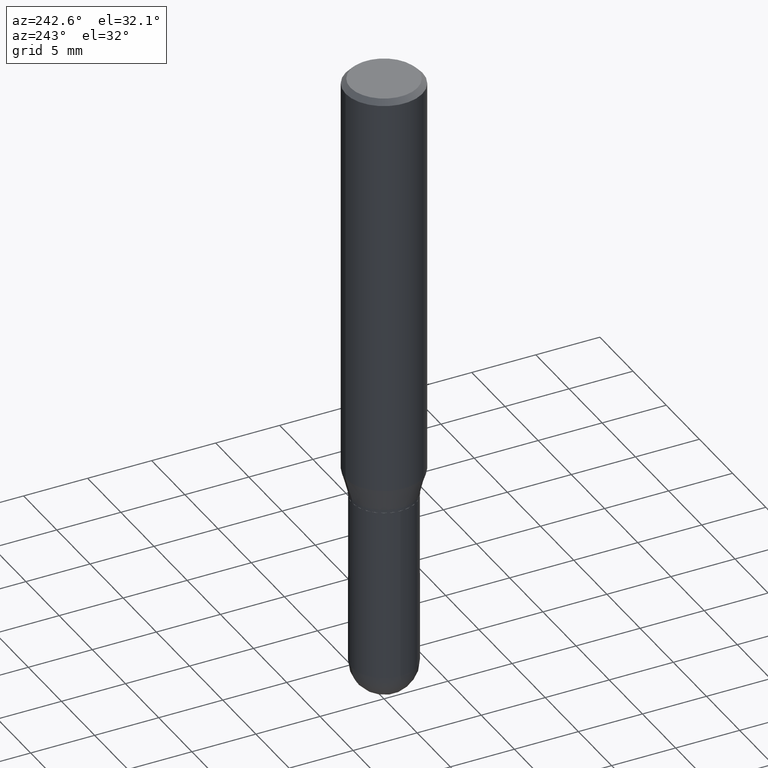
[diagram: clean part render]
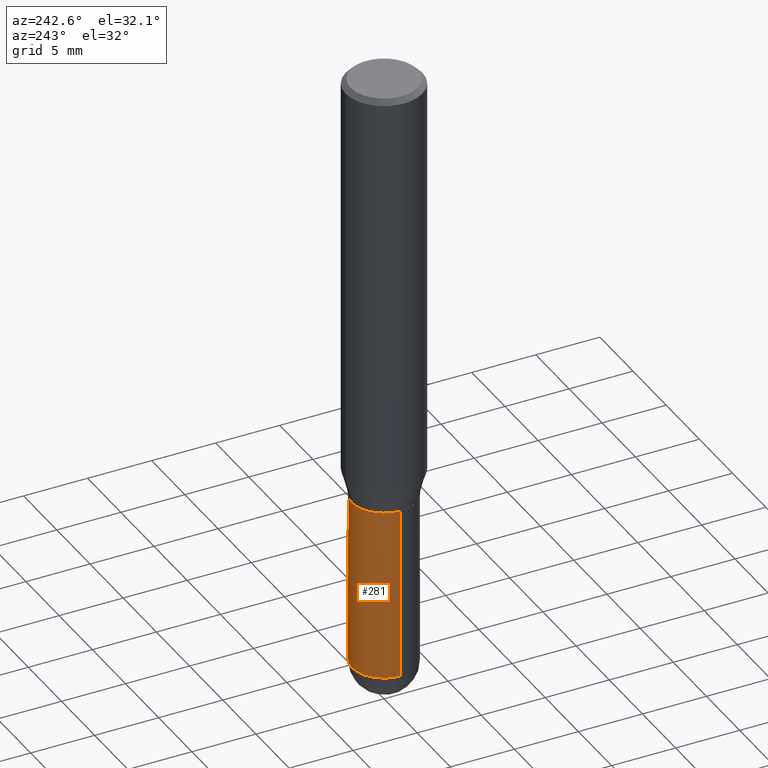
[diagram: same view with one face highlighted and labeled with its STEP entity id]
A machine part, auxiliary view. The second image highlights one B-rep face of the part: STEP entity #281.
In plain terms, the highlighted cylindrical surface (edge-blend (fillet) strip) has radius 2.5006 mm, axis along (-0, 0, 1).
Its self-contained STEP definition (entity closure, byte-faithful):
#9 = CARTESIAN_POINT ( 'NONE',  ( 0.09844999999999999585, -6.874726756182129545E-16, 4.800596035771099214E-30 ) ) ;
#12 = EDGE_CURVE ( 'NONE', #304, #364, #294, .T. ) ;
#18 = DIRECTION ( 'NONE',  ( -2.445468806185136597E-29, 3.491481338843145583E-15, 1.000000000000000000 ) ) ;
#19 = ORIENTED_EDGE ( 'NONE', *, *, #442, .T. ) ;
#20 = VERTEX_POINT ( 'NONE', #300 ) ;
#43 = DIRECTION ( 'NONE',  ( -2.445468806185136597E-29, 3.491481338843145583E-15, 1.000000000000000000 ) ) ;
#47 = EDGE_CURVE ( 'NONE', #364, #320, #336, .T. ) ;
#59 = CIRCLE ( 'NONE', #243, 0.09844999999999999585 ) ;
#70 = AXIS2_PLACEMENT_3D ( 'NONE', #303, #18, #339 ) ;
#96 = ORIENTED_EDGE ( 'NONE', *, *, #105, .F. ) ;
#98 = DIRECTION ( 'NONE',  ( -2.445468806185136877E-29, 3.491481338843145188E-15, 1.000000000000000000 ) ) ;
#105 = EDGE_CURVE ( 'NONE', #20, #242, #59, .T. ) ;
#106 = DIRECTION ( 'NONE',  ( -2.445468806185136597E-29, 3.491481338843145583E-15, 1.000000000000000000 ) ) ;
#110 = AXIS2_PLACEMENT_3D ( 'NONE', #459, #106, #335 ) ;
#133 = CARTESIAN_POINT ( 'NONE',  ( 0.000000000000000000, 0.000000000000000000, 0.000000000000000000 ) ) ;
#162 = CARTESIAN_POINT ( 'NONE',  ( 3.273504543959423913E-29, -4.673696920175434737E-15, -1.338600000000000012 ) ) ;
#164 = VECTOR ( 'NONE', #98, 39.37007874015748143 ) ;
#165 = EDGE_LOOP ( 'NONE', ( #412, #19, #96, #221, #256 ) ) ;
#167 = CYLINDRICAL_SURFACE ( 'NONE', #322, 0.09844999999999999585 ) ;
#176 = DIRECTION ( 'NONE',  ( -2.445468806185136877E-29, 3.491481338843145188E-15, 1.000000000000000000 ) ) ;
#210 = CARTESIAN_POINT ( 'NONE',  ( 0.09844999999999999585, -6.288943474557743431E-15, -1.870050000000000212 ) ) ;
#211 = CARTESIAN_POINT ( 'NONE',  ( -0.09844999999999999585, 6.995293233558186035E-16, -4.842691596355954042E-30 ) ) ;
#221 = ORIENTED_EDGE ( 'NONE', *, *, #365, .F. ) ;
#236 = DIRECTION ( 'NONE',  ( -2.445468806185136597E-29, 3.491481338843145583E-15, 1.000000000000000000 ) ) ;
#242 = VERTEX_POINT ( 'NONE', #443 ) ;
#243 = AXIS2_PLACEMENT_3D ( 'NONE', #162, #236, #278 ) ;
#254 = CARTESIAN_POINT ( 'NONE',  ( -0.09844999999999999585, -4.901941475583711971E-15, -1.870050000000000212 ) ) ;
#256 = ORIENTED_EDGE ( 'NONE', *, *, #12, .T. ) ;
#257 = LINE ( 'NONE', #211, #164 ) ;
#278 = DIRECTION ( 'NONE',  ( 1.000000000000000000, -6.982962677686265922E-15, 0.000000000000000000 ) ) ;
#281 = ADVANCED_FACE ( 'NONE', ( #289 ), #167, .T. ) ;
#289 = FACE_OUTER_BOUND ( 'NONE', #165, .T. ) ;
#294 = CIRCLE ( 'NONE', #70, 0.09844999999999999585 ) ;
#300 = CARTESIAN_POINT ( 'NONE',  ( 0.09844999999999999585, -5.361169595793647297E-15, -1.338600000000000012 ) ) ;
#303 = CARTESIAN_POINT ( 'NONE',  ( 4.573148941006514739E-29, -6.529244677703625427E-15, -1.870050000000000212 ) ) ;
#304 = VERTEX_POINT ( 'NONE', #210 ) ;
#320 = VERTEX_POINT ( 'NONE', #254 ) ;
#322 = AXIS2_PLACEMENT_3D ( 'NONE', #133, #43, #441 ) ;
#335 = DIRECTION ( 'NONE',  ( 1.000000000000000000, -6.982962677686265922E-15, 0.000000000000000000 ) ) ;
#336 = CIRCLE ( 'NONE', #110, 0.09844999999999999585 ) ;
#339 = DIRECTION ( 'NONE',  ( 1.000000000000000000, -6.982962677686265922E-15, 0.000000000000000000 ) ) ;
#364 = VERTEX_POINT ( 'NONE', #405 ) ;
#365 = EDGE_CURVE ( 'NONE', #304, #20, #479, .T. ) ;
#405 = CARTESIAN_POINT ( 'NONE',  ( 6.874726756182583140E-16, 0.09844999999999343165, -1.870050000000000434 ) ) ;
#412 = ORIENTED_EDGE ( 'NONE', *, *, #47, .T. ) ;
#441 = DIRECTION ( 'NONE',  ( 1.000000000000000000, -6.982962677686266711E-15, 4.876176775795936353E-29 ) ) ;
#442 = EDGE_CURVE ( 'NONE', #320, #242, #257, .T. ) ;
#443 = CARTESIAN_POINT ( 'NONE',  ( -0.09844999999999999585, -4.901941475583711183E-15, -1.338600000000000012 ) ) ;
#446 = VECTOR ( 'NONE', #176, 39.37007874015748143 ) ;
#459 = CARTESIAN_POINT ( 'NONE',  ( 4.573148941006514739E-29, -6.529244677703625427E-15, -1.870050000000000212 ) ) ;
#479 = LINE ( 'NONE', #9, #446 ) ;